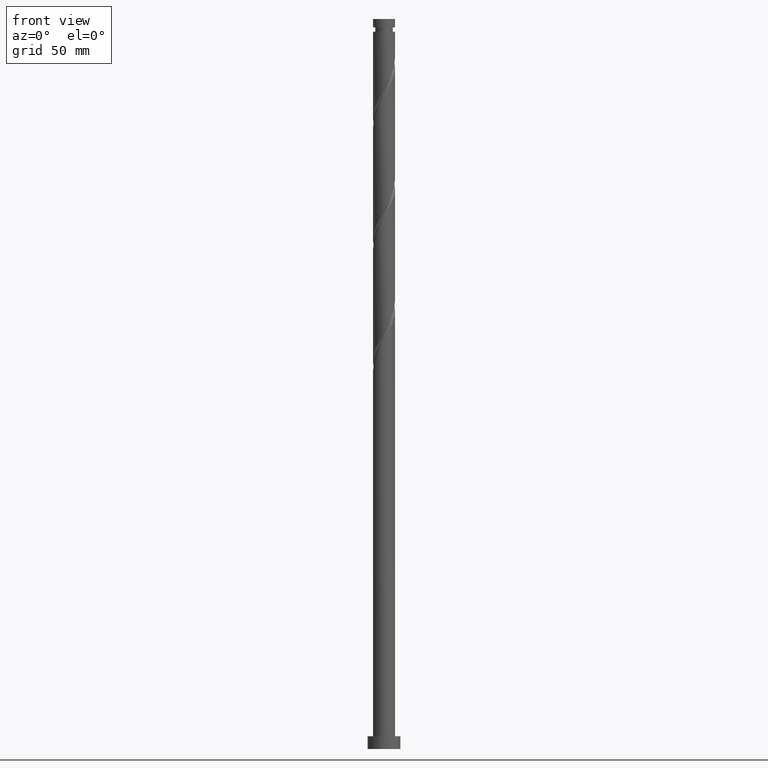
[diagram: clean part render]
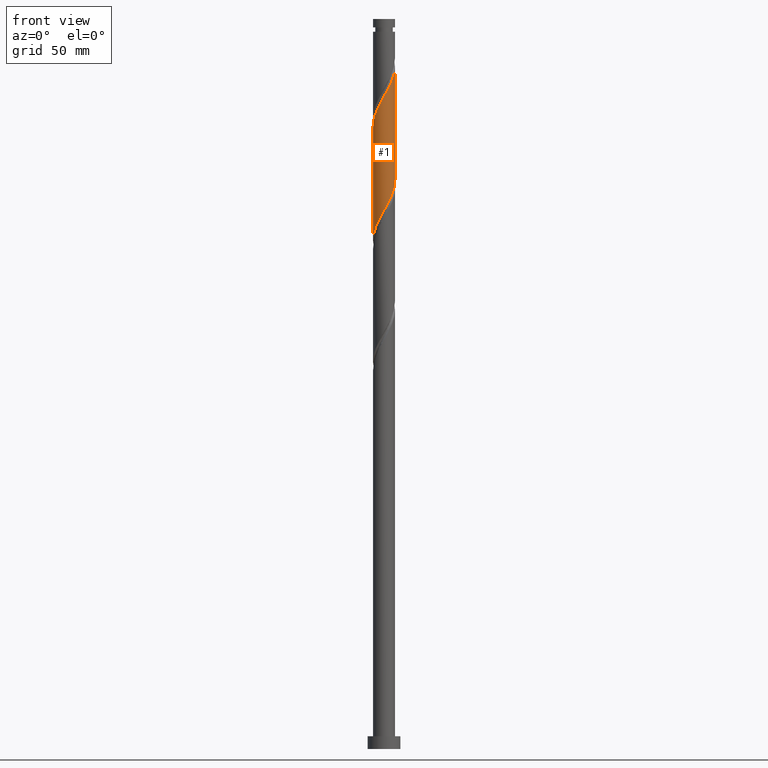
[diagram: same view with one face highlighted and labeled with its STEP entity id]
A machine part, front view. The second image highlights one B-rep face of the part: STEP entity #1.
In plain terms, the highlighted cylindrical surface (edge-blend (fillet) strip) has radius 6 mm, axis along (-0, -0, -1).
Its self-contained STEP definition (entity closure, byte-faithful):
#1 = ADVANCED_FACE ( 'NONE', ( #1259 ), #476, .T. ) ;
#17 = LINE ( 'NONE', #1716, #1344 ) ;
#21 = CARTESIAN_POINT ( 'NONE',  ( -5.972594154091105167, -0.5728167861688754359, 341.9436834491941113 ) ) ;
#54 = CARTESIAN_POINT ( 'NONE',  ( -6.000000000000000888, 0.000000000000000000, 400.0000000000000000 ) ) ;
#64 = CARTESIAN_POINT ( 'NONE',  ( 0.5759720211657686217, -6.005492872411262617, 358.6103501158609106 ) ) ;
#82 = EDGE_CURVE ( 'NONE', #1672, #1416, #1282, .T. ) ;
#89 = CARTESIAN_POINT ( 'NONE',  ( 5.533577987046111701, -2.403581301106094692, 307.4992390047496542 ) ) ;
#114 = CARTESIAN_POINT ( 'NONE',  ( -0.5759720211657726185, -6.005492872411255512, 294.1659056714163398 ) ) ;
#127 = EDGE_CURVE ( 'NONE', #1672, #247, #809, .T. ) ;
#210 = CARTESIAN_POINT ( 'NONE',  ( 2.968830634605418073, -5.252021808101776656, 363.0547945603051971 ) ) ;
#219 = CARTESIAN_POINT ( 'NONE',  ( 4.422131378450344208, -4.055213196827626376, 366.3881278936386252 ) ) ;
#222 = CARTESIAN_POINT ( 'NONE',  ( -2.968830634605416741, -5.252021808101766887, 289.7214612269719964 ) ) ;
#235 = CARTESIAN_POINT ( 'NONE',  ( -5.999999999999999112, -8.759771436509885774E-15, 278.5135711371601133 ) ) ;
#246 = CARTESIAN_POINT ( 'NONE',  ( 5.722983335439792540, -1.802071514196485591, 308.6103501158608537 ) ) ;
#247 = VERTEX_POINT ( 'NONE', #1490 ) ;
#315 = CARTESIAN_POINT ( 'NONE',  ( -3.570759717274362366, -4.821791683751050606, 350.8325723380830823 ) ) ;
#338 = ORIENTED_EDGE ( 'NONE', *, *, #1951, .F. ) ;
#354 = CARTESIAN_POINT ( 'NONE',  ( 5.889548272695538600, -1.308017413239306981, 371.9436834491939976 ) ) ;
#389 = CARTESIAN_POINT ( 'NONE',  ( -3.995911296558494197, -4.519997933603993268, 287.4992390047497679 ) ) ;
#402 = ORIENTED_EDGE ( 'NONE', *, *, #1026, .F. ) ;
#453 = EDGE_LOOP ( 'NONE', ( #402, #1373, #1060, #338 ) ) ;
#461 = CARTESIAN_POINT ( 'NONE',  ( -4.077550444805414287, -4.446489714349447731, 349.7214612269718828 ) ) ;
#476 = CYLINDRICAL_SURFACE ( 'NONE', #1741, 6.000000000000000888 ) ;
#596 = VERTEX_POINT ( 'NONE', #904 ) ;
#619 = CARTESIAN_POINT ( 'NONE',  ( -5.912388683833484038, -1.200561727286872271, 343.0547945603053108 ) ) ;
#646 = CARTESIAN_POINT ( 'NONE',  ( -5.223250683108884296, -2.952567069755174689, 346.3881278936386252 ) ) ;
#708 = CARTESIAN_POINT ( 'NONE',  ( 5.972594154091097174, -0.5728167861688799878, 310.8325723380831391 ) ) ;
#718 = CARTESIAN_POINT ( 'NONE',  ( -1.193984924527948133, -5.879999999999997229, 293.0547945603052540 ) ) ;
#724 =( BOUNDED_CURVE ( )  B_SPLINE_CURVE ( 2, ( #1650, #1627, #708, #1318, #246, #89, #1796, #1040, #1187, #874, #730, #1472, #1786, #1660, #1493, #1030, #1517, #114, #718, #1339, #1307, #222, #887, #389, #1956, #1776, #1923, #1945, #1329, #851, #1671, #1816, #235 ),
 .UNSPECIFIED., .F., .T. ) 
 B_SPLINE_CURVE_WITH_KNOTS ( ( 3, 2, 2, 2, 2, 2, 2, 2, 2, 2, 2, 2, 2, 2, 2, 2, 3 ),
 ( 0.5545286012773112949, 0.5583333333333333481, 0.5666666666666666519, 0.5749999999999999556, 0.5833333333333333703, 0.5916666666666666741, 0.5999999999999999778, 0.6083333333333332815, 0.6166666666666666963, 0.6250000000000000000, 0.6333333333333333037, 0.6416666666666667185, 0.6500000000000000222, 0.6583333333333333259, 0.6666666666666666297, 0.6750000000000000444, 0.6795286012773112949 ),
 .UNSPECIFIED. ) 
 CURVE ( )  GEOMETRIC_REPRESENTATION_ITEM ( )  RATIONAL_B_SPLINE_CURVE ( ( 0.9066196499552194865, 0.9068171577856320997, 0.9090909090909310430, 0.9041108139711793168, 0.9090909090909310430, 0.9041108139711793168, 0.9090909090909310430, 0.9041108139711793168, 0.9090909090909310430, 0.9041108139711793168, 0.9090909090909310430, 0.9041108139711793168, 0.9090909090909310430, 0.9041108139711793168, 0.9090909090909310430, 0.9041108139711793168, 0.9090909090909310430, 0.9041108139711793168, 0.9090909090909310430, 0.9041108139711793168, 0.9090909090909310430, 0.9041108139711793168, 0.9090909090909310430, 0.9041108139711793168, 0.9090909090909310430, 0.9041108139711793168, 0.9090909090909310430, 0.9041108139711793168, 0.9090909090909310430, 0.9041108139711793168, 0.9090909090909310430, 0.9063845652764783711, 0.9066196499552194865 ) ) 
 REPRESENTATION_ITEM ( '' )  );
#730 = CARTESIAN_POINT ( 'NONE',  ( 3.570759717274353928, -4.821791683751046165, 301.9436834491942250 ) ) ;
#800 = CARTESIAN_POINT ( 'NONE',  ( -5.533577987046123248, -2.403581301106092916, 345.2770167825275962 ) ) ;
#809 = LINE ( 'NONE', #54, #1222 ) ;
#828 = CARTESIAN_POINT ( 'NONE',  ( -0.6852265267039298058, -5.994009761157345295, 356.3881278936386821 ) ) ;
#837 = CARTESIAN_POINT ( 'NONE',  ( 5.961173948522133337, -0.6814727840942111925, 373.0547945603051971 ) ) ;
#851 = CARTESIAN_POINT ( 'NONE',  ( -5.889548272695531494, -1.308017413239299653, 280.8325723380831391 ) ) ;
#874 = CARTESIAN_POINT ( 'NONE',  ( 4.077550444805407182, -4.446489714349444178, 303.0547945603053677 ) ) ;
#887 = CARTESIAN_POINT ( 'NONE',  ( -3.482370965581955247, -4.886009870852880077, 288.6103501158607969 ) ) ;
#904 = CARTESIAN_POINT ( 'NONE',  ( 5.999999999999999112, 6.158747153314116542E-15, 311.8469044704935413 ) ) ;
#944 = CARTESIAN_POINT ( 'NONE',  ( -3.063968989743309113, -5.197093653152656145, 351.9436834491941681 ) ) ;
#977 = DIRECTION ( 'NONE',  ( -0.000000000000000000, -0.000000000000000000, -1.000000000000000000 ) ) ;
#996 = CARTESIAN_POINT ( 'NONE',  ( -1.916477387274986510, -5.720559660890874198, 354.1659056714164535 ) ) ;
#1005 = CARTESIAN_POINT ( 'NONE',  ( -1.300851956989458325, -5.857284711024109747, 355.2770167825273688 ) ) ;
#1014 = CARTESIAN_POINT ( 'NONE',  ( 4.848351460342188446, -3.590428460051252824, 367.4992390047497111 ) ) ;
#1026 = EDGE_CURVE ( 'NONE', #1416, #596, #17, .T. ) ;
#1030 = CARTESIAN_POINT ( 'NONE',  ( 0.6852265267039264751, -5.994009761157336413, 296.3881278936386821 ) ) ;
#1040 = CARTESIAN_POINT ( 'NONE',  ( 4.912923379171636462, -3.501552838404256462, 305.2770167825273688 ) ) ;
#1060 = ORIENTED_EDGE ( 'NONE', *, *, #127, .T. ) ;
#1081 = DIRECTION ( 'NONE',  ( -0.000000000000000000, -0.000000000000000000, -1.000000000000000000 ) ) ;
#1095 = DIRECTION ( 'NONE',  ( -0.000000000000000000, -0.000000000000000000, -1.000000000000000000 ) ) ;
#1098 = DIRECTION ( 'NONE',  ( -1.000000000000000000, 0.000000000000000000, 0.000000000000000000 ) ) ;
#1134 = CARTESIAN_POINT ( 'NONE',  ( 6.000000000000005329, -0.3418424246786117560, 373.6570933407324446 ) ) ;
#1163 = CARTESIAN_POINT ( 'NONE',  ( -2.490223188509146812, -5.458826657021764284, 353.0547945603051403 ) ) ;
#1187 = CARTESIAN_POINT ( 'NONE',  ( 4.495236911988521378, -3.974021276376849432, 304.1659056714163967 ) ) ;
#1222 = VECTOR ( 'NONE', #977, 1000.000000000000000 ) ;
#1244 = CARTESIAN_POINT ( 'NONE',  ( -5.722983335439801422, -1.802071514196482704, 344.1659056714163967 ) ) ;
#1259 = FACE_OUTER_BOUND ( 'NONE', #453, .T. ) ;
#1269 = CARTESIAN_POINT ( 'NONE',  ( -4.495236911988532036, -3.974021276376851208, 348.6103501158608537 ) ) ;
#1282 =( BOUNDED_CURVE ( )  B_SPLINE_CURVE ( 2, ( #1396, #2010, #21, #619, #1244, #800, #646, #1858, #1269, #461, #315, #944, #1163, #996, #1005, #828, #1932, #64, #1613, #1624, #1783, #210, #1593, #1447, #219, #1014, #1903, #1315, #1436, #354, #837, #1134, #1459 ),
 .UNSPECIFIED., .F., .T. ) 
 B_SPLINE_CURVE_WITH_KNOTS ( ( 3, 2, 2, 2, 2, 2, 2, 2, 2, 2, 2, 2, 2, 2, 2, 2, 3 ),
 ( 0.5545286012773112949, 0.5583333333333333481, 0.5666666666666666519, 0.5749999999999999556, 0.5833333333333332593, 0.5916666666666666741, 0.5999999999999999778, 0.6083333333333333925, 0.6166666666666666963, 0.6250000000000000000, 0.6333333333333333037, 0.6416666666666666075, 0.6500000000000000222, 0.6583333333333333259, 0.6666666666666667407, 0.6750000000000000444, 0.6795286012773112949 ),
 .UNSPECIFIED. ) 
 CURVE ( )  GEOMETRIC_REPRESENTATION_ITEM ( )  RATIONAL_B_SPLINE_CURVE ( ( 0.9066196499552254817, 0.9068171577856380949, 0.9090909090909370383, 0.9041108139711853120, 0.9090909090909370383, 0.9041108139711853120, 0.9090909090909370383, 0.9041108139711853120, 0.9090909090909370383, 0.9041108139711853120, 0.9090909090909370383, 0.9041108139711853120, 0.9090909090909370383, 0.9041108139711853120, 0.9090909090909370383, 0.9041108139711853120, 0.9090909090909370383, 0.9041108139711853120, 0.9090909090909370383, 0.9041108139711853120, 0.9090909090909370383, 0.9041108139711853120, 0.9090909090909370383, 0.9041108139711853120, 0.9090909090909370383, 0.9041108139711853120, 0.9090909090909370383, 0.9041108139711853120, 0.9090909090909370383, 0.9041108139711853120, 0.9090909090909370383, 0.9063845652764843663, 0.9066196499552254817 ) ) 
 REPRESENTATION_ITEM ( '' )  );
#1307 = CARTESIAN_POINT ( 'NONE',  ( -2.390414231247773635, -5.503264467845252028, 290.8325723380829686 ) ) ;
#1315 = CARTESIAN_POINT ( 'NONE',  ( 5.488895400337416852, -2.503940034007006599, 369.7214612269719964 ) ) ;
#1318 = CARTESIAN_POINT ( 'NONE',  ( 5.912388683833474268, -1.200561727286872493, 309.7214612269720533 ) ) ;
#1329 = CARTESIAN_POINT ( 'NONE',  ( -5.689221836516471065, -1.905978723623149351, 281.9436834491941681 ) ) ;
#1339 = CARTESIAN_POINT ( 'NONE',  ( -1.811997827890125867, -5.754507127588740723, 291.9436834491941681 ) ) ;
#1344 = VECTOR ( 'NONE', #1095, 1000.000000000000000 ) ;
#1373 = ORIENTED_EDGE ( 'NONE', *, *, #82, .F. ) ;
#1396 = CARTESIAN_POINT ( 'NONE',  ( -6.000000000000007994, -9.208223899129782742E-15, 340.9293513167838228 ) ) ;
#1416 = VERTEX_POINT ( 'NONE', #1509 ) ;
#1436 = CARTESIAN_POINT ( 'NONE',  ( 5.689221836516478170, -1.905978723623156901, 370.8325723380831391 ) ) ;
#1447 = CARTESIAN_POINT ( 'NONE',  ( 3.995911296558496417, -4.519997933604003926, 365.2770167825275962 ) ) ;
#1459 = CARTESIAN_POINT ( 'NONE',  ( 6.000000000000008882, -1.195873233653218653E-15, 374.2626846501170235 ) ) ;
#1472 = CARTESIAN_POINT ( 'NONE',  ( 3.063968989743301119, -5.197093653152651704, 300.8325723380830823 ) ) ;
#1490 = CARTESIAN_POINT ( 'NONE',  ( -5.999999999999999112, -8.759771436509885774E-15, 278.5135711371601133 ) ) ;
#1493 = CARTESIAN_POINT ( 'NONE',  ( 1.300851956989451885, -5.857284711024101753, 297.4992390047497679 ) ) ;
#1509 = CARTESIAN_POINT ( 'NONE',  ( 6.000000000000008882, -1.195873233653218653E-15, 374.2626846501170803 ) ) ;
#1517 = CARTESIAN_POINT ( 'NONE',  ( 0.05462725276907706706, -5.999751316784294630, 295.2770167825273688 ) ) ;
#1578 = CARTESIAN_POINT ( 'NONE',  ( 0.000000000000000000, 0.000000000000000000, 400.0000000000000000 ) ) ;
#1593 = CARTESIAN_POINT ( 'NONE',  ( 3.482370965581957467, -4.886009870852891623, 364.1659056714163398 ) ) ;
#1613 = CARTESIAN_POINT ( 'NONE',  ( 1.193984924527947911, -5.880000000000006999, 359.7214612269718828 ) ) ;
#1624 = CARTESIAN_POINT ( 'NONE',  ( 1.811997827890124535, -5.754507127588753157, 360.8325723380829686 ) ) ;
#1627 = CARTESIAN_POINT ( 'NONE',  ( 6.000000000000000888, -0.2870639957204881854, 311.3383559449295035 ) ) ;
#1650 = CARTESIAN_POINT ( 'NONE',  ( 5.999999999999999112, 6.158747153314116542E-15, 311.8469044704935982 ) ) ;
#1660 = CARTESIAN_POINT ( 'NONE',  ( 1.916477387274979849, -5.720559660890867093, 298.6103501158608537 ) ) ;
#1671 = CARTESIAN_POINT ( 'NONE',  ( -5.961173948522126231, -0.6814727840942079728, 279.7214612269719964 ) ) ;
#1672 = VERTEX_POINT ( 'NONE', #1748 ) ;
#1716 = CARTESIAN_POINT ( 'NONE',  ( 6.000000000000000888, 7.347880794884120722E-16, 400.0000000000000000 ) ) ;
#1741 = AXIS2_PLACEMENT_3D ( 'NONE', #1578, #1081, #1098 ) ;
#1748 = CARTESIAN_POINT ( 'NONE',  ( -6.000000000000007994, -9.208223899129782742E-15, 340.9293513167838228 ) ) ;
#1776 = CARTESIAN_POINT ( 'NONE',  ( -4.848351460342184893, -3.590428460051244386, 285.2770167825274825 ) ) ;
#1783 = CARTESIAN_POINT ( 'NONE',  ( 2.390414231247771415, -5.503264467845264463, 361.9436834491942250 ) ) ;
#1786 = CARTESIAN_POINT ( 'NONE',  ( 2.490223188509141483, -5.458826657021758066, 299.7214612269719964 ) ) ;
#1796 = CARTESIAN_POINT ( 'NONE',  ( 5.223250683108875414, -2.952567069755172913, 306.3881278936386252 ) ) ;
#1816 = CARTESIAN_POINT ( 'NONE',  ( -5.999999999999998224, -0.3418424246786076481, 279.1191624465446921 ) ) ;
#1858 = CARTESIAN_POINT ( 'NONE',  ( -4.912923379171648897, -3.501552838404256018, 347.4992390047498247 ) ) ;
#1903 = CARTESIAN_POINT ( 'NONE',  ( 5.168623430339803093, -3.047184247029130599, 368.6103501158609106 ) ) ;
#1923 = CARTESIAN_POINT ( 'NONE',  ( -5.168623430339798652, -3.047184247029121718, 284.1659056714163967 ) ) ;
#1932 = CARTESIAN_POINT ( 'NONE',  ( -0.05462725276908186184, -5.999751316784303512, 357.4992390047496542 ) ) ;
#1945 = CARTESIAN_POINT ( 'NONE',  ( -5.488895400337409747, -2.503940034007001270, 283.0547945603053108 ) ) ;
#1951 = EDGE_CURVE ( 'NONE', #596, #247, #724, .T. ) ;
#1956 = CARTESIAN_POINT ( 'NONE',  ( -4.422131378450339767, -4.055213196827619271, 286.3881278936386821 ) ) ;
#2010 = CARTESIAN_POINT ( 'NONE',  ( -6.000000000000008882, -0.2870639957204827453, 341.4378998423478038 ) ) ;